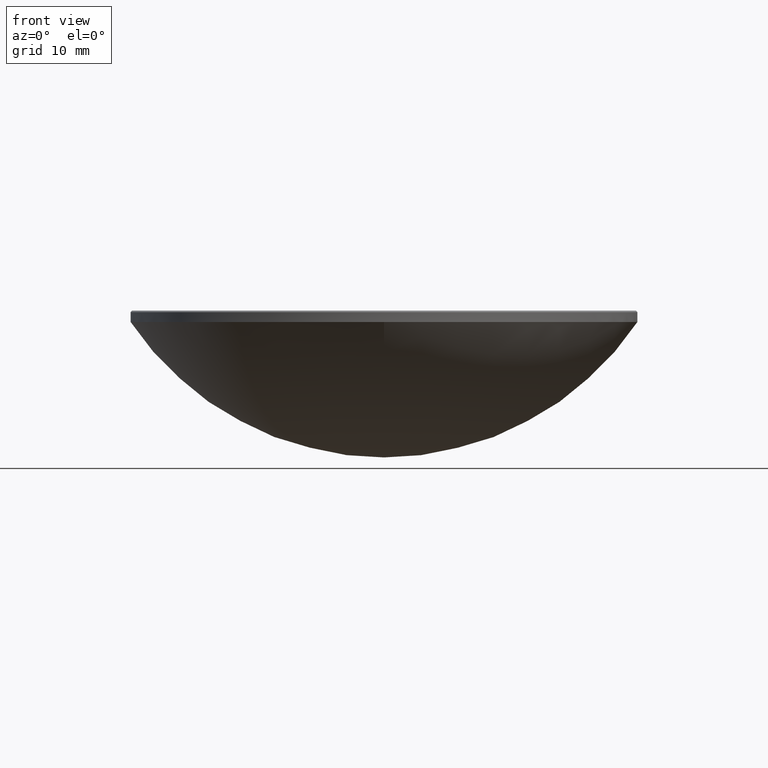
[diagram: clean part render]
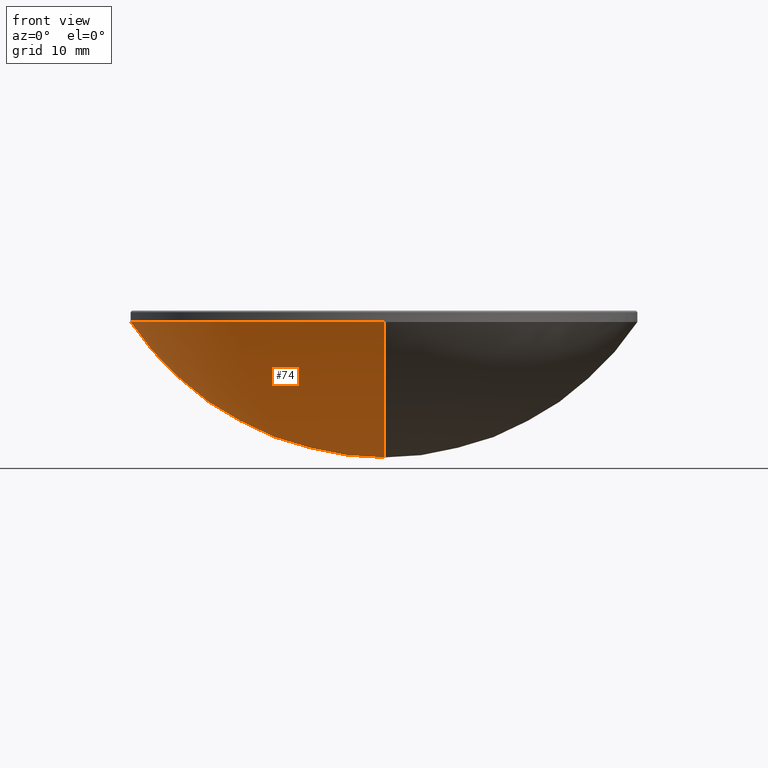
[diagram: same view with one face highlighted and labeled with its STEP entity id]
A machine part, front view. The second image highlights one B-rep face of the part: STEP entity #74.
In plain terms, the highlighted spherical surface has radius 30.55 mm.
Its self-contained STEP definition (entity closure, byte-faithful):
#10 = AXIS2_PLACEMENT_3D ( 'NONE', #73, #66, #273 ) ;
#19 = CIRCLE ( 'NONE', #39, 30.55000000000000071 ) ;
#21 = ORIENTED_EDGE ( 'NONE', *, *, #257, .T. ) ;
#22 = DIRECTION ( 'NONE',  ( 0.000000000000000000, 1.000000000000000000, 0.000000000000000000 ) ) ;
#31 = ORIENTED_EDGE ( 'NONE', *, *, #277, .F. ) ;
#37 = VERTEX_POINT ( 'NONE', #111 ) ;
#39 = AXIS2_PLACEMENT_3D ( 'NONE', #222, #166, #242 ) ;
#40 = FACE_OUTER_BOUND ( 'NONE', #106, .T. ) ;
#41 = CARTESIAN_POINT ( 'NONE',  ( 0.000000000000000000, 0.000000000000000000, 15.00000000000000000 ) ) ;
#53 = DIRECTION ( 'NONE',  ( 1.000000000000000000, 0.000000000000000000, 0.000000000000000000 ) ) ;
#58 = CIRCLE ( 'NONE', #135, 25.39999999999999503 ) ;
#66 = DIRECTION ( 'NONE',  ( 1.000000000000000000, -0.000000000000000000, 0.000000000000000000 ) ) ;
#73 = CARTESIAN_POINT ( 'NONE',  ( 0.000000000000000000, 0.000000000000000000, 31.97476067577979819 ) ) ;
#74 = ADVANCED_FACE ( 'NONE', ( #40 ), #88, .T. ) ;
#77 = CIRCLE ( 'NONE', #153, 25.39999999999999503 ) ;
#88 = SPHERICAL_SURFACE ( 'NONE', #234, 30.55000000000000071 ) ;
#93 = CIRCLE ( 'NONE', #10, 30.55000000000000071 ) ;
#106 = EDGE_LOOP ( 'NONE', ( #215, #21, #31, #236 ) ) ;
#107 = CARTESIAN_POINT ( 'NONE',  ( 0.000000000000000000, 0.000000000000000000, 31.97476067577979819 ) ) ;
#110 = CARTESIAN_POINT ( 'NONE',  ( 0.000000000000000000, 0.000000000000000000, 15.00000000000000000 ) ) ;
#111 = CARTESIAN_POINT ( 'NONE',  ( 0.000000000000000000, 25.39999999999999858, 15.00000000000000178 ) ) ;
#113 = VERTEX_POINT ( 'NONE', #249 ) ;
#129 = CARTESIAN_POINT ( 'NONE',  ( 0.000000000000000000, 1.870647985697581912E-15, 1.424760675779797259 ) ) ;
#132 = DIRECTION ( 'NONE',  ( 1.000000000000000000, 0.000000000000000000, 0.000000000000000000 ) ) ;
#135 = AXIS2_PLACEMENT_3D ( 'NONE', #110, #140, #53 ) ;
#140 = DIRECTION ( 'NONE',  ( -0.000000000000000000, -0.000000000000000000, 1.000000000000000000 ) ) ;
#145 = VERTEX_POINT ( 'NONE', #228 ) ;
#153 = AXIS2_PLACEMENT_3D ( 'NONE', #41, #181, #132 ) ;
#159 = VERTEX_POINT ( 'NONE', #129 ) ;
#166 = DIRECTION ( 'NONE',  ( -1.000000000000000000, 1.224646799147353207E-16, 0.000000000000000000 ) ) ;
#181 = DIRECTION ( 'NONE',  ( -0.000000000000000000, -0.000000000000000000, 1.000000000000000000 ) ) ;
#188 = EDGE_CURVE ( 'NONE', #37, #113, #58, .T. ) ;
#215 = ORIENTED_EDGE ( 'NONE', *, *, #235, .F. ) ;
#218 = DIRECTION ( 'NONE',  ( -1.000000000000000000, 0.000000000000000000, 0.000000000000000000 ) ) ;
#222 = CARTESIAN_POINT ( 'NONE',  ( 0.000000000000000000, 0.000000000000000000, 31.97476067577979819 ) ) ;
#228 = CARTESIAN_POINT ( 'NONE',  ( -3.110602869834276471E-15, -25.39999999999999858, 15.00000000000000178 ) ) ;
#234 = AXIS2_PLACEMENT_3D ( 'NONE', #107, #218, #22 ) ;
#235 = EDGE_CURVE ( 'NONE', #159, #37, #93, .T. ) ;
#236 = ORIENTED_EDGE ( 'NONE', *, *, #188, .F. ) ;
#242 = DIRECTION ( 'NONE',  ( -1.224646799147353207E-16, -1.000000000000000000, 0.000000000000000000 ) ) ;
#249 = CARTESIAN_POINT ( 'NONE',  ( -25.39999999999999503, 0.000000000000000000, 15.00000000000000000 ) ) ;
#257 = EDGE_CURVE ( 'NONE', #159, #145, #19, .T. ) ;
#273 = DIRECTION ( 'NONE',  ( 0.000000000000000000, 0.000000000000000000, -1.000000000000000000 ) ) ;
#277 = EDGE_CURVE ( 'NONE', #113, #145, #77, .T. ) ;